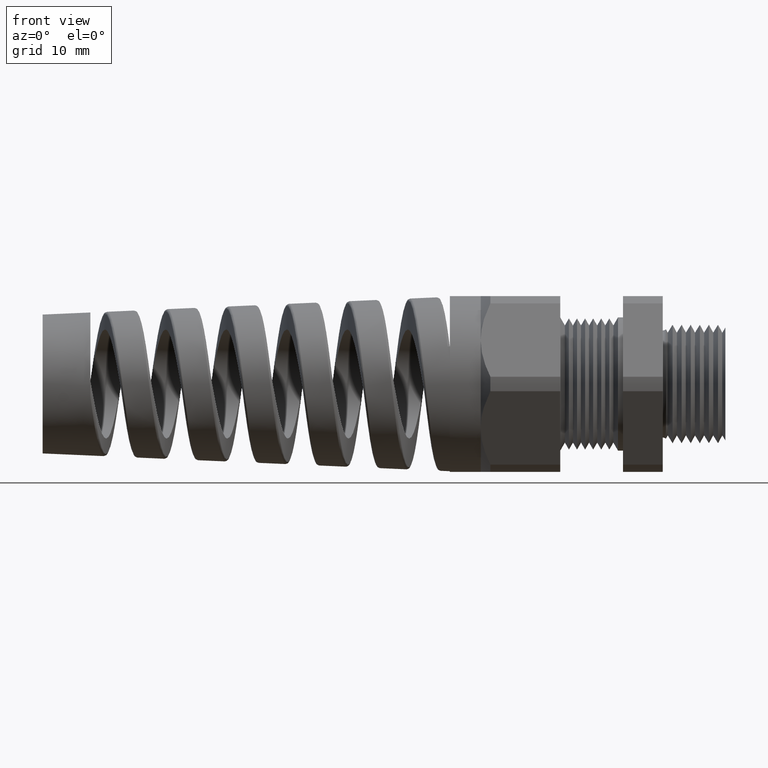
[diagram: clean part render]
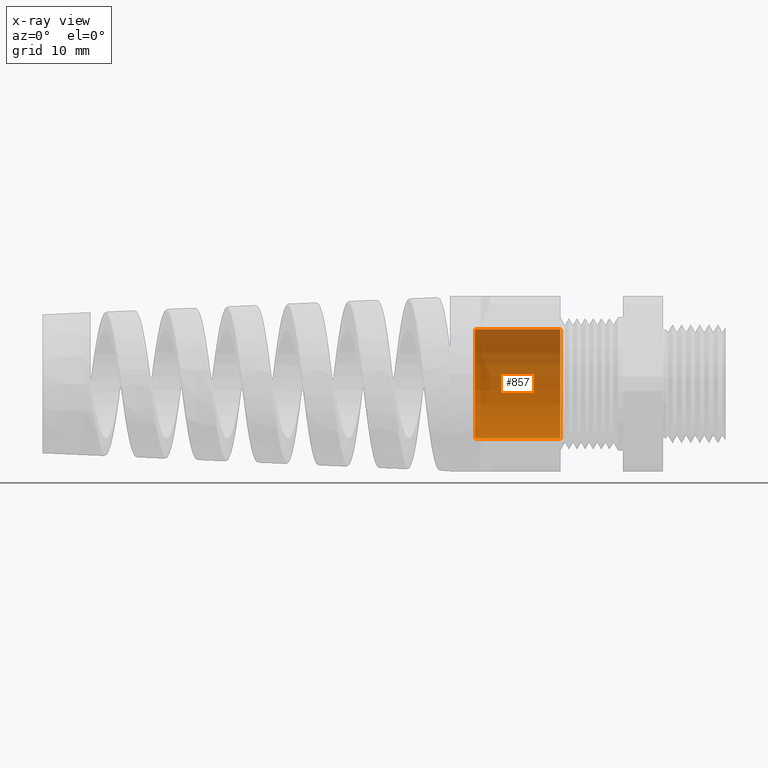
[diagram: x-ray — body ghosted, one internal face saturated and labeled with its STEP entity id]
A machine part, front view, then the same camera in x-ray: the body is ghosted and one INTERNAL B-rep face — a face not visible from any outside direction — is saturated and labeled: STEP entity #857.
In plain terms, the highlighted cylindrical surface (partial cylindrical patch) has radius 6.858 mm, axis along (1, 0, 0).
Its self-contained STEP definition (entity closure, byte-faithful):
#771 = VERTEX_POINT ( 'NONE', #4456 ) ;
#772 = ORIENTED_EDGE ( 'NONE', *, *, #773, .F. ) ;
#773 = EDGE_CURVE ( 'NONE', #774, #771, #4455, .T. ) ;
#774 = VERTEX_POINT ( 'NONE', #4450 ) ;
#775 = ORIENTED_EDGE ( 'NONE', *, *, #776, .F. ) ;
#776 = EDGE_CURVE ( 'NONE', #782, #774, #4448, .T. ) ;
#781 = EDGE_CURVE ( 'NONE', #782, #846, #4498, .T. ) ;
#782 = VERTEX_POINT ( 'NONE', #4493 ) ;
#846 = VERTEX_POINT ( 'NONE', #4632 ) ;
#857 = ADVANCED_FACE ( 'NONE', ( #4623 ), #4621, .T. ) ;
#858 = EDGE_LOOP ( 'NONE', ( #859, #860, #772, #775 ) ) ;
#859 = ORIENTED_EDGE ( 'NONE', *, *, #781, .T. ) ;
#860 = ORIENTED_EDGE ( 'NONE', *, *, #861, .T. ) ;
#861 = EDGE_CURVE ( 'NONE', #846, #771, #4617, .T. ) ;
#3918 = DIRECTION ( 'NONE',  ( 1.000000000000000000, 0.0000000000000000000, 0.0000000000000000000 ) ) ;
#4446 = VECTOR ( 'NONE', #3918, 39.37007874015748100 ) ;
#4447 = CARTESIAN_POINT ( 'NONE',  ( 0.0000000000000000000, 0.0000000000000000000, -0.2699999999999999600 ) ) ;
#4448 = LINE ( 'NONE', #4447, #4446 ) ;
#4450 = CARTESIAN_POINT ( 'NONE',  ( -0.8175590551181100000, 0.0000000000000000000, -0.2699999999999999600 ) ) ;
#4451 = DIRECTION ( 'NONE',  ( 0.0000000000000000000, 0.0000000000000000000, -1.000000000000000000 ) ) ;
#4452 = DIRECTION ( 'NONE',  ( 1.000000000000000000, 0.0000000000000000000, 0.0000000000000000000 ) ) ;
#4453 = CARTESIAN_POINT ( 'NONE',  ( -0.8175590551181100000, 0.0000000000000000000, 0.0000000000000000000 ) ) ;
#4454 = AXIS2_PLACEMENT_3D ( 'NONE', #4453, #4452, #4451 ) ;
#4455 = CIRCLE ( 'NONE', #4454, 0.2699999999999999600 ) ;
#4456 = CARTESIAN_POINT ( 'NONE',  ( -0.8175590551181100000, 3.306546357697853700E-017, 0.2699999999999999600 ) ) ;
#4493 = CARTESIAN_POINT ( 'NONE',  ( -1.240000000000000000, 0.0000000000000000000, -0.2699999999999999600 ) ) ;
#4494 = DIRECTION ( 'NONE',  ( 0.0000000000000000000, 0.0000000000000000000, -1.000000000000000000 ) ) ;
#4495 = DIRECTION ( 'NONE',  ( 1.000000000000000000, 0.0000000000000000000, 0.0000000000000000000 ) ) ;
#4496 = CARTESIAN_POINT ( 'NONE',  ( -1.240000000000000000, 0.0000000000000000000, 0.0000000000000000000 ) ) ;
#4497 = AXIS2_PLACEMENT_3D ( 'NONE', #4496, #4495, #4494 ) ;
#4498 = CIRCLE ( 'NONE', #4497, 0.2699999999999999600 ) ;
#4614 = DIRECTION ( 'NONE',  ( 1.000000000000000000, 0.0000000000000000000, 0.0000000000000000000 ) ) ;
#4615 = VECTOR ( 'NONE', #4614, 39.37007874015748100 ) ;
#4616 = CARTESIAN_POINT ( 'NONE',  ( 0.0000000000000000000, 3.306546357697853700E-017, 0.2699999999999999600 ) ) ;
#4617 = LINE ( 'NONE', #4616, #4615 ) ;
#4618 = DIRECTION ( 'NONE',  ( 0.0000000000000000000, 0.0000000000000000000, -1.000000000000000000 ) ) ;
#4619 = DIRECTION ( 'NONE',  ( 1.000000000000000000, 0.0000000000000000000, 0.0000000000000000000 ) ) ;
#4620 = AXIS2_PLACEMENT_3D ( 'NONE', #4622, #4619, #4618 ) ;
#4621 = CYLINDRICAL_SURFACE ( 'NONE', #4620, 0.2699999999999999600 ) ;
#4622 = CARTESIAN_POINT ( 'NONE',  ( 0.0000000000000000000, 0.0000000000000000000, 0.0000000000000000000 ) ) ;
#4623 = FACE_OUTER_BOUND ( 'NONE', #858, .T. ) ;
#4632 = CARTESIAN_POINT ( 'NONE',  ( -1.240000000000000000, 3.306546357697853700E-017, 0.2699999999999999600 ) ) ;